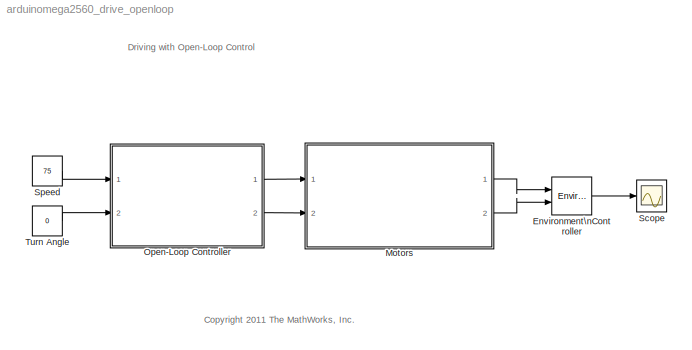
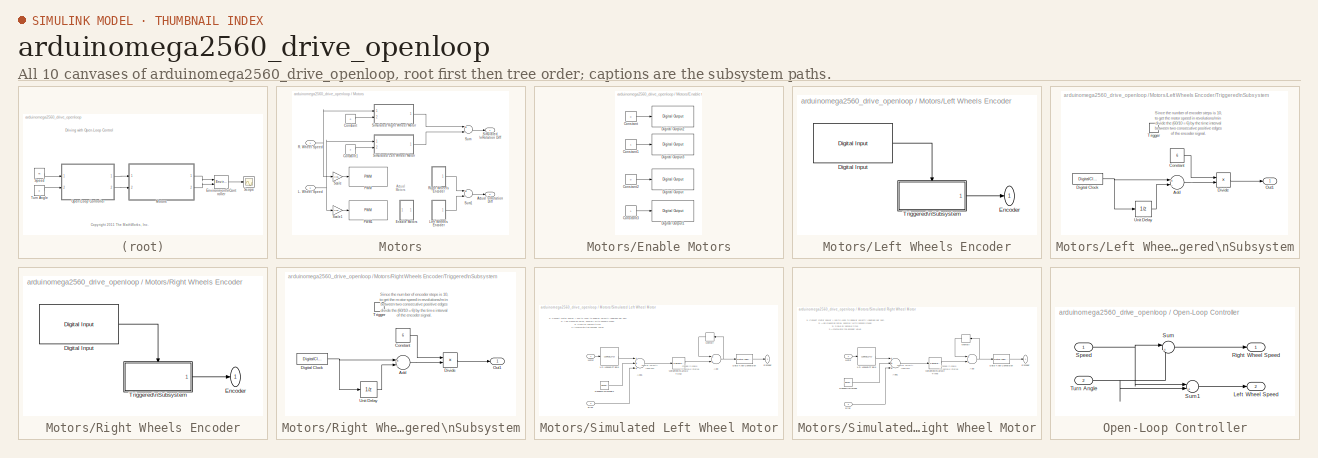
[diagram: thumbnail index - all 10 canvases of the model, root first then tree order]
MODEL arduinomega2560_drive_openloop
KIND model
CONFIG InitFcn = lego_drive_openloop_InitData.mdl = get_param(bdroot,'Name');\nlego_drive_openloop_InitData.cs = getActiveConfigSet(lego_drive_openloop_InitData.mdl);\n\n
BLOCK [Reference] Environment\nController  REF=simulink/Signal\nRouting/Environment\nController
  Ports = [2, 1]
  SID = 273
  SourceBlock = simulink/Signal\nRouting/Environment\nController
  SourceProductBaseCode = SL
  SourceProductName = Simulink
  SourceType = Environment Controller
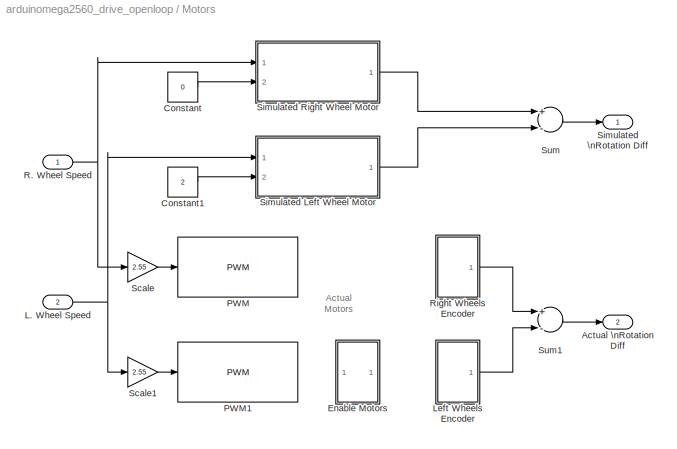
BLOCK [SubSystem] Motors
  Ports = [2, 2]
  RequestExecContextInheritance = off
  SID = 274
  VariantControl = DoSim
BLOCK [Outport] Motors/Actual \nRotation Diff
  IconDisplay = Port number
  Port = 2
  SID = 314
BLOCK [Constant] Motors/Constant
  OutDataTypeStr = single
  SID = 277
  Value = 0
BLOCK [Constant] Motors/Constant1
  OutDataTypeStr = single
  SID = 278
  Value = 2
BLOCK [SubSystem] Motors/Enable Motors
  Ports = []
  RequestExecContextInheritance = off
  SID = 341
BLOCK [Constant] Motors/Enable Motors/Constant
  OutDataTypeStr = boolean
  SID = 342
  Value = 0
BLOCK [Constant] Motors/Enable Motors/Constant1
  OutDataTypeStr = boolean
  SID = 343
BLOCK [Constant] Motors/Enable Motors/Constant2
  OutDataTypeStr = boolean
  SID = 346
  Value = 0
BLOCK [Constant] Motors/Enable Motors/Constant3
  OutDataTypeStr = boolean
  SID = 347
BLOCK [Reference] Motors/Enable Motors/Digital Output  REF=arduinolib/Digital Output
  Ports = [1]
  SID = 348
  SourceBlock = arduinolib/Digital Output
  SourceProductBaseCode = ARDUINO
  SourceProductName = Simulink Support Package for Arduino Hardware
  SourceType = Arduino Digital Output
  pinNumber = 2
BLOCK [Reference] Motors/Enable Motors/Digital Output1  REF=arduinolib/Digital Output
  Ports = [1]
  SID = 349
  SourceBlock = arduinolib/Digital Output
  SourceProductBaseCode = ARDUINO
  SourceProductName = Simulink Support Package for Arduino Hardware
  SourceType = Arduino Digital Output
  pinNumber = 3
BLOCK [Reference] Motors/Enable Motors/Digital Output2  REF=arduinolib/Digital Output
  Ports = [1]
  SID = 344
  SourceBlock = arduinolib/Digital Output
  SourceProductBaseCode = ARDUINO
  SourceProductName = Simulink Support Package for Arduino Hardware
  SourceType = Arduino Digital Output
  pinNumber = 4
BLOCK [Reference] Motors/Enable Motors/Digital Output3  REF=arduinolib/Digital Output
  Ports = [1]
  SID = 345
  SourceBlock = arduinolib/Digital Output
  SourceProductBaseCode = ARDUINO
  SourceProductName = Simulink Support Package for Arduino Hardware
  SourceType = Arduino Digital Output
  pinNumber = 5
BLOCK [Inport] Motors/L. Wheel Speed
  IconDisplay = Port number
  Port = 2
  SID = 276
BLOCK [SubSystem] Motors/Left Wheels Encoder
  Ports = [0, 1]
  RequestExecContextInheritance = off
  SID = 372
BLOCK [Reference] Motors/Left Wheels Encoder/Digital Input  REF=arduinolib/Digital Input
  Ports = [0, 1]
  SID = 373
  SourceBlock = arduinolib/Digital Input
  SourceProductBaseCode = ARDUINO
  SourceProductName = Simulink Support Package for Arduino Hardware
  SourceType = Arduino Digital Input
  pinNumber = 9
  sampleTime = 0.001
BLOCK [Outport] Motors/Left Wheels Encoder/Encoder
  IconDisplay = Port number
  SID = 382
BLOCK [SubSystem] Motors/Left Wheels Encoder/Triggered\nSubsystem
  Ports = [0, 1, 0, 1]
  RequestExecContextInheritance = off
  SID = 374
  TreatAsAtomicUnit = on
BLOCK [Sum] Motors/Left Wheels Encoder/Triggered\nSubsystem/Add
  InputSameDT = off
  Inputs = +-
  OutDataTypeStr = Inherit: Inherit via internal rule
  Ports = [2, 1]
  SID = 376
  SaturateOnIntegerOverflow = off
BLOCK [Constant] Motors/Left Wheels Encoder/Triggered\nSubsystem/Constant
  SID = 377
  Value = 6
BLOCK [DigitalClock] Motors/Left Wheels Encoder/Triggered\nSubsystem/Digital Clock
  SID = 378
  SampleTime = -1
BLOCK [Product] Motors/Left Wheels Encoder/Triggered\nSubsystem/Divide
  InputSameDT = off
  Inputs = */
  OutDataTypeStr = int32
  Ports = [2, 1]
  RndMeth = Floor
  SID = 379
  SaturateOnIntegerOverflow = off
BLOCK [Outport] Motors/Left Wheels Encoder/Triggered\nSubsystem/Out1
  IconDisplay = Port number
  SID = 381
BLOCK [TriggerPort] Motors/Left Wheels Encoder/Triggered\nSubsystem/Trigger
  Ports = []
  SID = 375
  StatesWhenEnabling = held
  VariantControl = (inherit)
BLOCK [UnitDelay] Motors/Left Wheels Encoder/Triggered\nSubsystem/Unit Delay
  HasFrameUpgradeWarning = on
  SID = 380
  SampleTime = -1
BLOCK [Reference] Motors/PWM  REF=arduinolib/PWM
  Ports = [1]
  SID = 330
  SourceBlock = arduinolib/PWM
  SourceProductBaseCode = ARDUINO
  SourceProductName = Simulink Support Package for Arduino Hardware
  SourceType = Arduino PWM
  pinNumber = 10
BLOCK [Reference] Motors/PWM1  REF=arduinolib/PWM
  Ports = [1]
  SID = 331
  SourceBlock = arduinolib/PWM
  SourceProductBaseCode = ARDUINO
  SourceProductName = Simulink Support Package for Arduino Hardware
  SourceType = Arduino PWM
  pinNumber = 11
BLOCK [Inport] Motors/R. Wheel Speed
  IconDisplay = Port number
  SID = 275
BLOCK [SubSystem] Motors/Right Wheels Encoder
  Ports = [0, 1]
  RequestExecContextInheritance = off
  SID = 350
BLOCK [Reference] Motors/Right Wheels Encoder/Digital Input  REF=arduinolib/Digital Input
  Ports = [0, 1]
  SID = 351
  SourceBlock = arduinolib/Digital Input
  SourceProductBaseCode = ARDUINO
  SourceProductName = Simulink Support Package for Arduino Hardware
  SourceType = Arduino Digital Input
  pinNumber = 8
  sampleTime = 0.001
BLOCK [Outport] Motors/Right Wheels Encoder/Encoder
  IconDisplay = Port number
  SID = 360
BLOCK [SubSystem] Motors/Right Wheels Encoder/Triggered\nSubsystem
  Ports = [0, 1, 0, 1]
  RequestExecContextInheritance = off
  SID = 352
  TreatAsAtomicUnit = on
BLOCK [Sum] Motors/Right Wheels Encoder/Triggered\nSubsystem/Add
  InputSameDT = off
  Inputs = +-
  OutDataTypeStr = Inherit: Inherit via internal rule
  Ports = [2, 1]
  SID = 354
  SaturateOnIntegerOverflow = off
BLOCK [Constant] Motors/Right Wheels Encoder/Triggered\nSubsystem/Constant
  SID = 355
  Value = 6
BLOCK [DigitalClock] Motors/Right Wheels Encoder/Triggered\nSubsystem/Digital Clock
  SID = 356
  SampleTime = -1
BLOCK [Product] Motors/Right Wheels Encoder/Triggered\nSubsystem/Divide
  InputSameDT = off
  Inputs = */
  OutDataTypeStr = int32
  Ports = [2, 1]
  RndMeth = Floor
  SID = 357
  SaturateOnIntegerOverflow = off
BLOCK [Outport] Motors/Right Wheels Encoder/Triggered\nSubsystem/Out1
  IconDisplay = Port number
  SID = 359
BLOCK [TriggerPort] Motors/Right Wheels Encoder/Triggered\nSubsystem/Trigger
  Ports = []
  SID = 353
  StatesWhenEnabling = held
  VariantControl = (inherit)
BLOCK [UnitDelay] Motors/Right Wheels Encoder/Triggered\nSubsystem/Unit Delay
  HasFrameUpgradeWarning = on
  SID = 358
  SampleTime = -1
BLOCK [Gain] Motors/Scale
  Gain = 2.55
  OutDataTypeStr = Inherit: Inherit via internal rule
  ParamDataTypeStr = Inherit: Inherit via internal rule
  SID = 383
  SaturateOnIntegerOverflow = off
BLOCK [Gain] Motors/Scale1
  Gain = 2.55
  OutDataTypeStr = Inherit: Inherit via internal rule
  ParamDataTypeStr = Inherit: Inherit via internal rule
  SID = 384
  SaturateOnIntegerOverflow = off
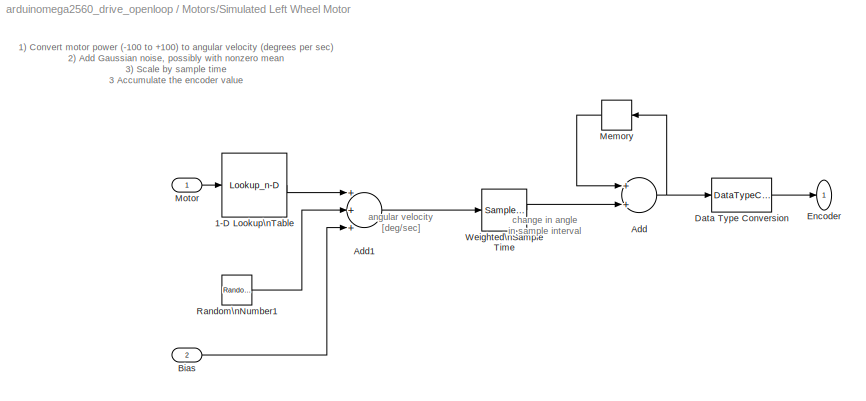
BLOCK [SubSystem] Motors/Simulated Left Wheel Motor
  Ports = [2, 1]
  RequestExecContextInheritance = off
  SID = 283
BLOCK [Lookup_n-D] Motors/Simulated Left Wheel Motor/1-D Lookup\nTable
  BreakpointsForDimension1 = [-100 0 100]
  ExtrapMethod = Clip
  NumberOfTableDimensions = 1
  Ports = [1, 1]
  RndMeth = Simplest
  SID = 286
  Table = [-360 0 360]
  UseLastTableValue = on
BLOCK [Sum] Motors/Simulated Left Wheel Motor/Add
  AccumDataTypeStr = Inherit: Same as first input
  InputSameDT = off
  Ports = [2, 1]
  SID = 287
  SaturateOnIntegerOverflow = off
BLOCK [Sum] Motors/Simulated Left Wheel Motor/Add1
  InputSameDT = off
  Inputs = +++
  OutDataTypeStr = single
  Ports = [3, 1]
  SID = 288
  SaturateOnIntegerOverflow = off
BLOCK [Inport] Motors/Simulated Left Wheel Motor/Bias
  IconDisplay = Port number
  Port = 2
  SID = 285
BLOCK [DataTypeConversion] Motors/Simulated Left Wheel Motor/Data Type Conversion
  OutDataTypeStr = int32
  RndMeth = Floor
  SID = 289
  SaturateOnIntegerOverflow = off
BLOCK [Outport] Motors/Simulated Left Wheel Motor/Encoder
  IconDisplay = Port number
  SID = 293
BLOCK [Memory] Motors/Simulated Left Wheel Motor/Memory
  InheritSampleTime = on
  LinearizeAsDelay = on
  SID = 290
BLOCK [Inport] Motors/Simulated Left Wheel Motor/Motor
  IconDisplay = Port number
  SID = 284
BLOCK [RandomNumber] Motors/Simulated Left Wheel Motor/Random\nNumber1
  SID = 291
  Seed = randi(1000)
  Variance = 5
BLOCK [SampleTimeMath] Motors/Simulated Left Wheel Motor/Weighted\nSample Time
  SID = 292
  TsampMathOp = *
BLOCK [SubSystem] Motors/Simulated Right Wheel Motor
  Ports = [2, 1]
  RequestExecContextInheritance = off
  SID = 297
BLOCK [Lookup_n-D] Motors/Simulated Right Wheel Motor/1-D Lookup\nTable
  BreakpointsForDimension1 = [-100 0 100]
  ExtrapMethod = Clip
  NumberOfTableDimensions = 1
  Ports = [1, 1]
  RndMeth = Simplest
  SID = 300
  Table = [-360 0 360]
  UseLastTableValue = on
BLOCK [Sum] Motors/Simulated Right Wheel Motor/Add
  AccumDataTypeStr = single
  InputSameDT = off
  OutDataTypeStr = single
  Ports = [2, 1]
  SID = 301
  SaturateOnIntegerOverflow = off
BLOCK [Sum] Motors/Simulated Right Wheel Motor/Add1
  InputSameDT = off
  Inputs = +++
  OutDataTypeStr = single
  Ports = [3, 1]
  SID = 302
  SaturateOnIntegerOverflow = off
BLOCK [Inport] Motors/Simulated Right Wheel Motor/Bias
  IconDisplay = Port number
  Port = 2
  SID = 299
BLOCK [DataTypeConversion] Motors/Simulated Right Wheel Motor/Data Type Conversion
  OutDataTypeStr = int32
  RndMeth = Floor
  SID = 303
  SaturateOnIntegerOverflow = off
BLOCK [Outport] Motors/Simulated Right Wheel Motor/Encoder
  IconDisplay = Port number
  SID = 307
BLOCK [Memory] Motors/Simulated Right Wheel Motor/Memory
  InheritSampleTime = on
  LinearizeAsDelay = on
  SID = 304
BLOCK [Inport] Motors/Simulated Right Wheel Motor/Motor
  IconDisplay = Port number
  SID = 298
BLOCK [RandomNumber] Motors/Simulated Right Wheel Motor/Random\nNumber
  SID = 305
  Seed = randi(1000)
  Variance = 5
BLOCK [SampleTimeMath] Motors/Simulated Right Wheel Motor/Weighted\nSample Time
  SID = 306
  TsampMathOp = *
BLOCK [Outport] Motors/Simulated \nRotation Diff
  IconDisplay = Port number
  SID = 313
BLOCK [Sum] Motors/Sum
  InputSameDT = off
  Inputs = +-
  Ports = [2, 1]
  SID = 311
  SaturateOnIntegerOverflow = off
BLOCK [Sum] Motors/Sum1
  InputSameDT = off
  Inputs = +-
  Ports = [2, 1]
  SID = 312
  SaturateOnIntegerOverflow = off
BLOCK [SubSystem] Open-Loop Controller
  Ports = [2, 2]
  RequestExecContextInheritance = off
  SID = 316
BLOCK [Outport] Open-Loop Controller/Left Wheel Speed
  IconDisplay = Port number
  Port = 2
  SID = 322
BLOCK [Outport] Open-Loop Controller/Right Wheel Speed
  IconDisplay = Port number
  SID = 321
BLOCK [Inport] Open-Loop Controller/Speed
  IconDisplay = Port number
  SID = 317
BLOCK [Sum] Open-Loop Controller/Sum
  IconShape = round
  InputSameDT = off
  Inputs = |++
  Ports = [2, 1]
  SID = 319
  SaturateOnIntegerOverflow = off
BLOCK [Sum] Open-Loop Controller/Sum1
  IconShape = round
  InputSameDT = off
  Inputs = |+-
  Ports = [2, 1]
  SID = 320
  SaturateOnIntegerOverflow = off
BLOCK [Inport] Open-Loop Controller/Turn Angle
  IconDisplay = Port number
  Port = 2
  SID = 318
BLOCK [Scope] Scope
  Floating = off
  NumInputPorts = 1
  Ports = [1]
  SID = 323
  ScopeSpecificationString = C++SS(StrPVP('Location','[807, 70, 1170, 323]'),StrPVP('Open','off'),StrPVP('ZoomMode','yonly'),MxPVP('AxesTitles',54,'struct(''axes1'',''Encoder Output Mismatch'')'),MxPVP('ScopeGraphics',57,'struct(''FigureColor'',''[0.5 0.5 0.5]'',''AxesColor'',''[0 0 0]'',''AxesTickColor'',''[1 1 1]'',''LineColors'',''[1 1 0;1 0 1;0 1 1;1 0 0;0 1 0;0 0 1]'',''LineStyles'',''-|-|-|-|-|-'',''LineWidths'',''[0.5 ...<+343ch>
BLOCK [Constant] Speed
  OutDataTypeStr = single
  OutMax = 100
  OutMin = 0
  SID = 324
  SampleTime = 0.001
  Value = 75
BLOCK [Constant] Turn Angle
  OutDataTypeStr = single
  OutMax = 50
  OutMin = -50
  SID = 325
  SampleTime = 0.001
  Value = 0
ANNOTATION (root): <copyright redacted>
ANNOTATION (root): Driving with Open-Loop Control
ANNOTATION Motors: Actual\nMotors
ANNOTATION Motors/Left Wheels Encoder/Triggered\nSubsystem: Since the number of encoder steps is 10,\nto get the motor speed in revolutions/min \ndivide the (60/10 = 6) by the time interval \nbetween two consecutive positive edges \nof the encoder signal.
ANNOTATION Motors/Right Wheels Encoder/Triggered\nSubsystem: Since the number of encoder steps is 10,\nto get the motor speed in revolutions/min \ndivide the (60/10 = 6) by the time interval \nbetween two consecutive positive edges \nof the encoder signal.
ANNOTATION Motors/Simulated Left Wheel Motor: 1) Convert motor power (-100 to +100) to angular velocity (degrees per sec)\n2) Add Gaussian noise, possibly with nonzero mean\n3) Scale by sample time \n3 Accumulate the encoder value
ANNOTATION Motors/Simulated Left Wheel Motor: angular velocity\n[deg/sec]
ANNOTATION Motors/Simulated Left Wheel Motor: change in angle \nin sample interval
ANNOTATION Motors/Simulated Right Wheel Motor: 1) Convert motor power (-100 to +100) to angular velocity (degrees per sec)\n2) Add Gaussian noise, possibly with nonzero mean\n3) Scale by sample time \n3 Accumulate the encoder value
ANNOTATION Motors/Simulated Right Wheel Motor: angular velocity\n [deg/sec]
ANNOTATION Motors/Simulated Right Wheel Motor: change in angle \nin sample interval
LINE Environment\nController:1 -> Scope:1
LINE Motors/Constant1:1 -> Motors/Simulated Left Wheel Motor:2
LINE Motors/Constant:1 -> Motors/Simulated Right Wheel Motor:2
LINE Motors/Enable Motors/Constant1:1 -> Motors/Enable Motors/Digital Output3:1
LINE Motors/Enable Motors/Constant2:1 -> Motors/Enable Motors/Digital Output:1
LINE Motors/Enable Motors/Constant3:1 -> Motors/Enable Motors/Digital Output1:1
LINE Motors/Enable Motors/Constant:1 -> Motors/Enable Motors/Digital Output2:1
NET Motors/L. Wheel Speed:1 -> Motors/Scale1:1, Motors/Simulated Left Wheel Motor:1
LINE Motors/Left Wheels Encoder/Digital Input:1 -> Motors/Left Wheels Encoder/Triggered\nSubsystem:trigger
LINE Motors/Left Wheels Encoder/Triggered\nSubsystem/Add:1 -> Motors/Left Wheels Encoder/Triggered\nSubsystem/Divide:2
LINE Motors/Left Wheels Encoder/Triggered\nSubsystem/Constant:1 -> Motors/Left Wheels Encoder/Triggered\nSubsystem/Divide:1
NET Motors/Left Wheels Encoder/Triggered\nSubsystem/Digital Clock:1 -> Motors/Left Wheels Encoder/Triggered\nSubsystem/Add:1, Motors/Left Wheels Encoder/Triggered\nSubsystem/Unit Delay:1
LINE Motors/Left Wheels Encoder/Triggered\nSubsystem/Divide:1 -> Motors/Left Wheels Encoder/Triggered\nSubsystem/Out1:1
LINE Motors/Left Wheels Encoder/Triggered\nSubsystem/Unit Delay:1 -> Motors/Left Wheels Encoder/Triggered\nSubsystem/Add:2
LINE Motors/Left Wheels Encoder/Triggered\nSubsystem:1 -> Motors/Left Wheels Encoder/Encoder:1
LINE Motors/Left Wheels Encoder:1 -> Motors/Sum1:2
NET Motors/R. Wheel Speed:1 -> Motors/Scale:1, Motors/Simulated Right Wheel Motor:1
LINE Motors/Right Wheels Encoder/Digital Input:1 -> Motors/Right Wheels Encoder/Triggered\nSubsystem:trigger
LINE Motors/Right Wheels Encoder/Triggered\nSubsystem/Add:1 -> Motors/Right Wheels Encoder/Triggered\nSubsystem/Divide:2
LINE Motors/Right Wheels Encoder/Triggered\nSubsystem/Constant:1 -> Motors/Right Wheels Encoder/Triggered\nSubsystem/Divide:1
NET Motors/Right Wheels Encoder/Triggered\nSubsystem/Digital Clock:1 -> Motors/Right Wheels Encoder/Triggered\nSubsystem/Add:1, Motors/Right Wheels Encoder/Triggered\nSubsystem/Unit Delay:1
LINE Motors/Right Wheels Encoder/Triggered\nSubsystem/Divide:1 -> Motors/Right Wheels Encoder/Triggered\nSubsystem/Out1:1
LINE Motors/Right Wheels Encoder/Triggered\nSubsystem/Unit Delay:1 -> Motors/Right Wheels Encoder/Triggered\nSubsystem/Add:2
LINE Motors/Right Wheels Encoder/Triggered\nSubsystem:1 -> Motors/Right Wheels Encoder/Encoder:1
LINE Motors/Right Wheels Encoder:1 -> Motors/Sum1:1
LINE Motors/Scale1:1 -> Motors/PWM1:1
LINE Motors/Scale:1 -> Motors/PWM:1
LINE Motors/Simulated Left Wheel Motor/1-D Lookup\nTable:1 -> Motors/Simulated Left Wheel Motor/Add1:1
LINE Motors/Simulated Left Wheel Motor/Add1:1 -> Motors/Simulated Left Wheel Motor/Weighted\nSample Time:1
NET Motors/Simulated Left Wheel Motor/Add:1 -> Motors/Simulated Left Wheel Motor/Data Type Conversion:1, Motors/Simulated Left Wheel Motor/Memory:1
LINE Motors/Simulated Left Wheel Motor/Bias:1 -> Motors/Simulated Left Wheel Motor/Add1:3
LINE Motors/Simulated Left Wheel Motor/Data Type Conversion:1 -> Motors/Simulated Left Wheel Motor/Encoder:1
LINE Motors/Simulated Left Wheel Motor/Memory:1 -> Motors/Simulated Left Wheel Motor/Add:1
LINE Motors/Simulated Left Wheel Motor/Motor:1 -> Motors/Simulated Left Wheel Motor/1-D Lookup\nTable:1
LINE Motors/Simulated Left Wheel Motor/Random\nNumber1:1 -> Motors/Simulated Left Wheel Motor/Add1:2
LINE Motors/Simulated Left Wheel Motor/Weighted\nSample Time:1 -> Motors/Simulated Left Wheel Motor/Add:2
LINE Motors/Simulated Left Wheel Motor:1 -> Motors/Sum:2
LINE Motors/Simulated Right Wheel Motor/1-D Lookup\nTable:1 -> Motors/Simulated Right Wheel Motor/Add1:1
LINE Motors/Simulated Right Wheel Motor/Add1:1 -> Motors/Simulated Right Wheel Motor/Weighted\nSample Time:1
NET Motors/Simulated Right Wheel Motor/Add:1 -> Motors/Simulated Right Wheel Motor/Data Type Conversion:1, Motors/Simulated Right Wheel Motor/Memory:1
LINE Motors/Simulated Right Wheel Motor/Bias:1 -> Motors/Simulated Right Wheel Motor/Add1:3
LINE Motors/Simulated Right Wheel Motor/Data Type Conversion:1 -> Motors/Simulated Right Wheel Motor/Encoder:1
LINE Motors/Simulated Right Wheel Motor/Memory:1 -> Motors/Simulated Right Wheel Motor/Add:1
LINE Motors/Simulated Right Wheel Motor/Motor:1 -> Motors/Simulated Right Wheel Motor/1-D Lookup\nTable:1
LINE Motors/Simulated Right Wheel Motor/Random\nNumber:1 -> Motors/Simulated Right Wheel Motor/Add1:2
LINE Motors/Simulated Right Wheel Motor/Weighted\nSample Time:1 -> Motors/Simulated Right Wheel Motor/Add:2
LINE Motors/Simulated Right Wheel Motor:1 -> Motors/Sum:1
LINE Motors/Sum1:1 -> Motors/Actual \nRotation Diff:1
LINE Motors/Sum:1 -> Motors/Simulated \nRotation Diff:1
LINE Motors:1 -> Environment\nController:1
LINE Motors:2 -> Environment\nController:2
NET Open-Loop Controller/Speed:1 -> Open-Loop Controller/Sum1:1, Open-Loop Controller/Sum:1
LINE Open-Loop Controller/Sum1:1 -> Open-Loop Controller/Left Wheel Speed:1
LINE Open-Loop Controller/Sum:1 -> Open-Loop Controller/Right Wheel Speed:1
NET Open-Loop Controller/Turn Angle:1 -> Open-Loop Controller/Sum1:2, Open-Loop Controller/Sum:2
LINE Open-Loop Controller:1 -> Motors:1
LINE Open-Loop Controller:2 -> Motors:2
LINE Speed:1 -> Open-Loop Controller:1
LINE Turn Angle:1 -> Open-Loop Controller:2
note: NET lines group one-source signal fan-out (src -> all destinations, sorted); 1:1 wires keep LINE
